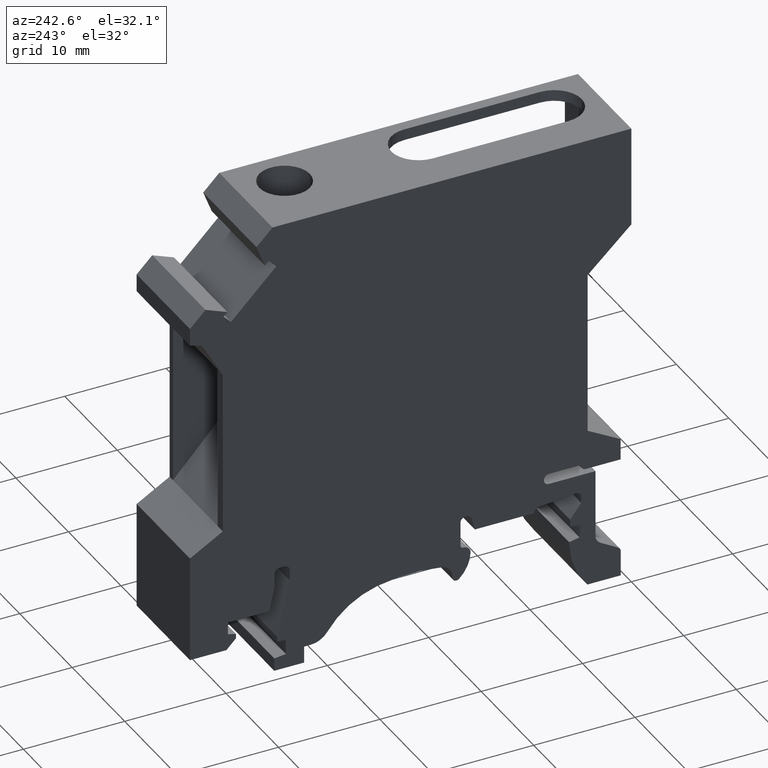
[diagram: clean part render]
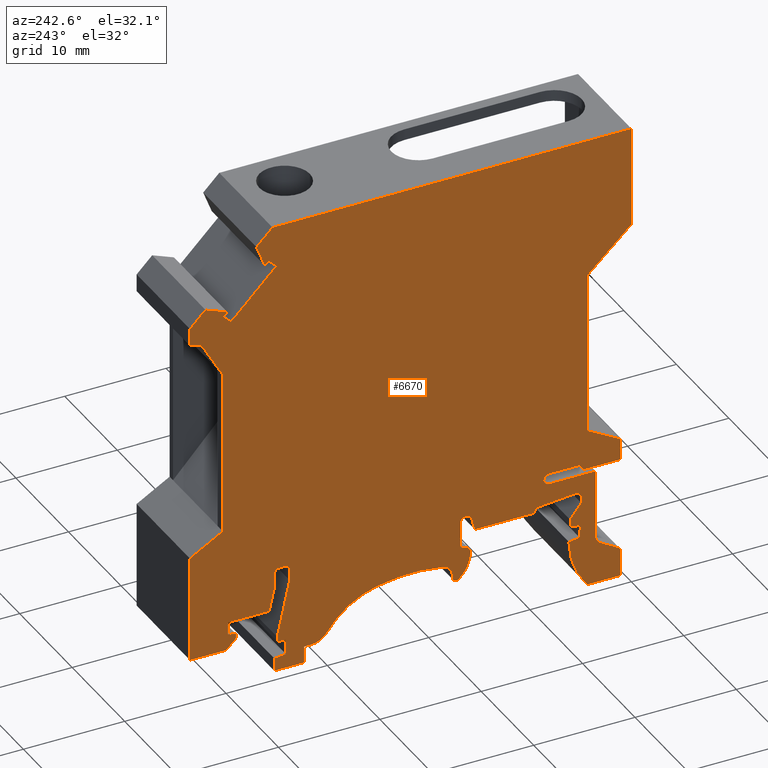
[diagram: same view with one face highlighted and labeled with its STEP entity id]
A machine part, auxiliary view. The second image highlights one B-rep face of the part: STEP entity #6670.
In plain terms, the highlighted planar face has unit normal (1, 0, 0).
Its self-contained STEP definition (entity closure, byte-faithful):
#10=CARTESIAN_POINT('',(0.,0.,0.));
#20=DIRECTION('',(0.,0.,1.));
#30=DIRECTION('',(1.,0.,0.));
#40=AXIS2_PLACEMENT_3D('',#10,#20,#30);
#50=PLANE('',#40);
#60=CARTESIAN_POINT('',(555.829199732728,-477.818261370942,
-1.77635683940025E-15));
#70=DIRECTION('',(0.707106781186654,-0.707106781186441,0.));
#80=VECTOR('',#70,1.);
#90=LINE('',#60,#80);
#100=CARTESIAN_POINT('',(49.4036845679783,28.6072537936553,0.));
#110=VERTEX_POINT('',#100);
#120=CARTESIAN_POINT('',(49.7769651538328,28.2339732078008,0.));
#130=VERTEX_POINT('',#120);
#140=EDGE_CURVE('',#110,#130,#90,.T.);
#150=ORIENTED_EDGE('',*,*,#140,.F.);
#160=CARTESIAN_POINT('',(555.829199732728,534.286207786593,0.));
#170=DIRECTION('',(-0.70710678118662,-0.707106781186476,0.));
#180=VECTOR('',#170,1.);
#190=LINE('',#160,#180);
#200=CARTESIAN_POINT('',(49.0203608979632,27.4773689519313,0.));
#210=VERTEX_POINT('',#200);
#220=EDGE_CURVE('',#130,#210,#190,.T.);
#230=ORIENTED_EDGE('',*,*,#220,.F.);
#240=CARTESIAN_POINT('',(315.963384986394,-239.465655136521,0.));
#250=DIRECTION('',(0.707106781186519,-0.707106781186576,0.));
#260=VECTOR('',#250,1.);
#270=LINE('',#240,#260);
#280=CARTESIAN_POINT('',(44.5479105069585,31.9498193429363,0.));
#290=VERTEX_POINT('',#280);
#300=EDGE_CURVE('',#290,#210,#270,.T.);
#310=ORIENTED_EDGE('',*,*,#300,.T.);
#320=CARTESIAN_POINT('',(-226.867563972499,-239.465655136521,0.));
#330=DIRECTION('',(0.707106781186548,0.707106781186548,0.));
#340=VECTOR('',#330,1.);
#350=LINE('',#320,#340);
#360=CARTESIAN_POINT('',(45.304514762828,32.7064235988058,0.));
#370=VERTEX_POINT('',#360);
#380=EDGE_CURVE('',#290,#370,#350,.T.);
#390=ORIENTED_EDGE('',*,*,#380,.F.);
#400=CARTESIAN_POINT('',(317.476593498073,-239.465655136521,
-1.77635683940025E-15));
#410=DIRECTION('',(0.707106781186441,-0.707106781186654,0.));
#420=VECTOR('',#410,1.);
#430=LINE('',#400,#420);
#440=CARTESIAN_POINT('',(45.6777953486824,32.3331430129512,0.));
#450=VERTEX_POINT('',#440);
#460=EDGE_CURVE('',#370,#450,#430,.T.);
#470=ORIENTED_EDGE('',*,*,#460,.F.);
#480=CARTESIAN_POINT('',(-60.1646556328538,-239.465655136521,0.));
#490=DIRECTION('',(0.362871839026601,0.931839057156037,0.));
#500=VECTOR('',#490,1.);
#510=LINE('',#480,#500);
#520=CARTESIAN_POINT('',(46.5121439855021,34.4757139249269,0.));
#530=VERTEX_POINT('',#520);
#540=EDGE_CURVE('',#450,#530,#510,.T.);
#550=ORIENTED_EDGE('',*,*,#540,.F.);
#560=CARTESIAN_POINT('',(320.45351304695,-239.465655136521,0.));
#570=DIRECTION('',(-0.707106781186548,0.707106781186548,0.));
#580=VECTOR('',#570,1.);
#590=LINE('',#560,#580);
#600=CARTESIAN_POINT('',(44.9291997327281,36.058658177701,0.));
#610=VERTEX_POINT('',#600);
#620=EDGE_CURVE('',#530,#610,#590,.T.);
#630=ORIENTED_EDGE('',*,*,#620,.F.);
#640=CARTESIAN_POINT('',(-375.562272307509,36.058658177701,0.));
#650=DIRECTION('',(1.,0.,0.));
#660=VECTOR('',#650,1.);
#670=LINE('',#640,#660);
#680=CARTESIAN_POINT('',(9.51919973272817,36.058658177701,0.));
#690=VERTEX_POINT('',#680);
#700=EDGE_CURVE('',#690,#610,#670,.T.);
#710=ORIENTED_EDGE('',*,*,#700,.T.);
#720=CARTESIAN_POINT('',(9.51919973272817,-305.746632837346,0.));
#730=DIRECTION('',(0.,-1.,0.));
#740=VECTOR('',#730,1.);
#750=LINE('',#720,#740);
#760=CARTESIAN_POINT('',(9.51919973272817,26.1586581777011,0.));
#770=VERTEX_POINT('',#760);
#780=EDGE_CURVE('',#690,#770,#750,.T.);
#790=ORIENTED_EDGE('',*,*,#780,.F.);
#800=CARTESIAN_POINT('',(9.51919973272817,26.1586581777011,0.));
#810=DIRECTION('',(0.732975177552117,-0.680255385199149,0.));
#820=VECTOR('',#810,1.);
#830=LINE('',#800,#820);
#840=CARTESIAN_POINT('',(13.8291997327281,22.1586581777013,0.));
#850=VERTEX_POINT('',#840);
#860=EDGE_CURVE('',#770,#850,#830,.T.);
#870=ORIENTED_EDGE('',*,*,#860,.F.);
#880=CARTESIAN_POINT('',(13.8291997327281,-305.746632837346,0.));
#890=DIRECTION('',(0.,-1.,0.));
#900=VECTOR('',#890,1.);
#910=LINE('',#880,#900);
#920=CARTESIAN_POINT('',(13.8291997327281,6.04912815159126,0.));
#930=VERTEX_POINT('',#920);
#940=EDGE_CURVE('',#850,#930,#910,.T.);
#950=ORIENTED_EDGE('',*,*,#940,.F.);
#960=CARTESIAN_POINT('',(555.829199732728,304.644428412688,0.));
#970=DIRECTION('',(-0.875877707971958,-0.482533149822672,0.));
#980=VECTOR('',#970,1.);
#990=LINE('',#960,#980);
#1000=CARTESIAN_POINT('',(10.5791997327281,4.25865817770092,0.));
#1010=VERTEX_POINT('',#1000);
#1020=EDGE_CURVE('',#930,#1010,#990,.T.);
#1030=ORIENTED_EDGE('',*,*,#1020,.F.);
#1040=CARTESIAN_POINT('',(10.5791997327281,-239.465655136521,0.));
#1050=DIRECTION('',(0.,-1.,0.));
#1060=VECTOR('',#1050,1.);
#1070=LINE('',#1040,#1060);
#1080=CARTESIAN_POINT('',(10.5791997327281,2.15865817770094,0.));
#1090=VERTEX_POINT('',#1080);
#1100=EDGE_CURVE('',#1010,#1090,#1070,.T.);
#1110=ORIENTED_EDGE('',*,*,#1100,.F.);
#1120=CARTESIAN_POINT('',(555.829199732728,2.15865817770094,0.));
#1130=DIRECTION('',(-1.,0.,0.));
#1140=VECTOR('',#1130,1.);
#1150=LINE('',#1120,#1140);
#1160=CARTESIAN_POINT('',(14.0113065139147,2.15865817770094,0.));
#1170=VERTEX_POINT('',#1160);
#1180=EDGE_CURVE('',#1170,#1090,#1150,.T.);
#1190=ORIENTED_EDGE('',*,*,#1180,.T.);
#1200=CARTESIAN_POINT('',(14.0113065139147,2.65865817770094,0.));
#1210=DIRECTION('',(0.,0.,1.));
#1220=DIRECTION('',(1.,0.,0.));
#1230=AXIS2_PLACEMENT_3D('',#1200,#1210,#1220);
#1240=CIRCLE('',#1230,0.5);
#1250=CARTESIAN_POINT('',(14.5113065139147,2.65865817770094,0.));
#1260=VERTEX_POINT('',#1250);
#1270=EDGE_CURVE('',#1170,#1260,#1240,.T.);
#1280=ORIENTED_EDGE('',*,*,#1270,.F.);
#1290=CARTESIAN_POINT('',(14.5113065139147,-239.465655136521,0.));
#1300=DIRECTION('',(0.,-1.,0.));
#1310=VECTOR('',#1300,1.);
#1320=LINE('',#1290,#1310);
#1330=CARTESIAN_POINT('',(14.5113065139147,2.70865817770095,0.));
#1340=VERTEX_POINT('',#1330);
#1350=EDGE_CURVE('',#1340,#1260,#1320,.T.);
#1360=ORIENTED_EDGE('',*,*,#1350,.T.);
#1370=CARTESIAN_POINT('',(555.829199732728,2.70865817770095,0.));
#1380=DIRECTION('',(-1.,0.,0.));
#1390=VECTOR('',#1380,1.);
#1400=LINE('',#1370,#1390);
#1410=CARTESIAN_POINT('',(17.6291997327282,2.70865817770095,0.));
#1420=VERTEX_POINT('',#1410);
#1430=EDGE_CURVE('',#1420,#1340,#1400,.T.);
#1440=ORIENTED_EDGE('',*,*,#1430,.T.);
#1450=CARTESIAN_POINT('',(17.6291997327282,2.18365817770098,0.));
#1460=DIRECTION('',(0.,0.,1.));
#1470=DIRECTION('',(1.,0.,0.));
#1480=AXIS2_PLACEMENT_3D('',#1450,#1460,#1470);
#1490=CIRCLE('',#1480,0.52500000000003);
#1500=CARTESIAN_POINT('',(18.1536041568128,2.15865817769072,0.));
#1510=VERTEX_POINT('',#1500);
#1520=EDGE_CURVE('',#1510,#1420,#1490,.T.);
#1530=ORIENTED_EDGE('',*,*,#1520,.T.);
#1540=CARTESIAN_POINT('',(17.6316997327281,2.18103615558056,0.));
#1550=DIRECTION('',(0.,0.,1.));
#1560=DIRECTION('',(1.,0.,0.));
#1570=AXIS2_PLACEMENT_3D('',#1540,#1550,#1560);
#1580=CIRCLE('',#1570,0.522383960103672);
#1590=CARTESIAN_POINT('',(17.6341997327282,1.65865817770094,0.));
#1600=VERTEX_POINT('',#1590);
#1610=EDGE_CURVE('',#1600,#1510,#1580,.T.);
#1620=ORIENTED_EDGE('',*,*,#1610,.T.);
#1630=CARTESIAN_POINT('',(555.829199732728,1.65865817770094,0.));
#1640=DIRECTION('',(1.,0.,0.));
#1650=VECTOR('',#1640,1.);
#1660=LINE('',#1630,#1650);
#1670=CARTESIAN_POINT('',(13.0591997327281,1.65865817770094,0.));
#1680=VERTEX_POINT('',#1670);
#1690=EDGE_CURVE('',#1680,#1600,#1660,.T.);
#1700=ORIENTED_EDGE('',*,*,#1690,.T.);
#1710=CARTESIAN_POINT('',(13.0591997327281,-5.03194074554045,0.));
#1720=DIRECTION('',(0.,1.,0.));
#1730=VECTOR('',#1720,1.);
#1740=LINE('',#1710,#1730);
#1750=CARTESIAN_POINT('',(13.0591997327281,-5.03194074554045,0.));
#1760=VERTEX_POINT('',#1750);
#1770=EDGE_CURVE('',#1760,#1680,#1740,.T.);
#1780=ORIENTED_EDGE('',*,*,#1770,.T.);
#1790=CARTESIAN_POINT('',(12.0591997327281,-5.03194074554045,0.));
#1800=DIRECTION('',(0.,0.,1.));
#1810=DIRECTION('',(1.,0.,0.));
#1820=AXIS2_PLACEMENT_3D('',#1790,#1800,#1810);
#1830=CIRCLE('',#1820,1.00000000000006);
#1840=CARTESIAN_POINT('',(12.5591997327282,-5.89796614932493,0.));
#1850=VERTEX_POINT('',#1840);
#1860=EDGE_CURVE('',#1850,#1760,#1830,.T.);
#1870=ORIENTED_EDGE('',*,*,#1860,.T.);
#1880=CARTESIAN_POINT('',(10.8091997327281,-6.90832912040673,0.));
#1890=DIRECTION('',(0.866025403784447,0.499999999999985,0.));
#1900=VECTOR('',#1890,1.);
#1910=LINE('',#1880,#1900);
#1920=CARTESIAN_POINT('',(10.8091997327281,-6.90832912040673,0.));
#1930=VERTEX_POINT('',#1920);
#1940=EDGE_CURVE('',#1930,#1850,#1910,.T.);
#1950=ORIENTED_EDGE('',*,*,#1940,.T.);
#1960=CARTESIAN_POINT('',(11.0591997327281,-7.34134182229906,0.));
#1970=DIRECTION('',(0.,0.,1.));
#1980=DIRECTION('',(1.,0.,0.));
#1990=AXIS2_PLACEMENT_3D('',#1960,#1970,#1980);
#2000=CIRCLE('',#1990,0.5);
#2010=CARTESIAN_POINT('',(10.5591997327281,-7.34134182229906,0.));
#2020=VERTEX_POINT('',#2010);
#2030=EDGE_CURVE('',#1930,#2020,#2000,.T.);
#2040=ORIENTED_EDGE('',*,*,#2030,.F.);
#2050=CARTESIAN_POINT('',(10.5591997327281,-239.465655136521,0.));
#2060=DIRECTION('',(0.,1.,0.));
#2070=VECTOR('',#2060,1.);
#2080=LINE('',#2050,#2070);
#2090=CARTESIAN_POINT('',(10.5591997327281,-9.84134182229906,0.));
#2100=VERTEX_POINT('',#2090);
#2110=EDGE_CURVE('',#2100,#2020,#2080,.T.);
#2120=ORIENTED_EDGE('',*,*,#2110,.T.);
#2130=CARTESIAN_POINT('',(555.829199732728,-9.84134182229906,0.));
#2140=DIRECTION('',(-1.,0.,0.));
#2150=VECTOR('',#2140,1.);
#2160=LINE('',#2130,#2150);
#2170=CARTESIAN_POINT('',(13.8646161327159,-9.84134182229906,0.));
#2180=VERTEX_POINT('',#2170);
#2190=EDGE_CURVE('',#2180,#2100,#2160,.T.);
#2200=ORIENTED_EDGE('',*,*,#2190,.T.);
#2210=CARTESIAN_POINT('',(8.19481872812804,-4.98385446349437,0.));
#2220=DIRECTION('',(0.,0.,1.));
#2230=DIRECTION('',(1.,0.,0.));
#2240=AXIS2_PLACEMENT_3D('',#2210,#2220,#2230);
#2250=CIRCLE('',#2240,7.46604219449759);
#2260=CARTESIAN_POINT('',(15.6591997327282,-5.14134182229934,0.));
#2270=VERTEX_POINT('',#2260);
#2280=EDGE_CURVE('',#2180,#2270,#2250,.T.);
#2290=ORIENTED_EDGE('',*,*,#2280,.F.);
#2300=CARTESIAN_POINT('',(15.6591997327282,-4.94134182229914,0.));
#2310=DIRECTION('',(0.,-1.,0.));
#2320=VECTOR('',#2310,1.);
#2330=LINE('',#2300,#2320);
#2340=CARTESIAN_POINT('',(15.6591997327282,-4.94134182229914,0.));
#2350=VERTEX_POINT('',#2340);
#2360=EDGE_CURVE('',#2350,#2270,#2330,.T.);
#2370=ORIENTED_EDGE('',*,*,#2360,.T.);
#2380=CARTESIAN_POINT('',(14.6341997327282,-4.74134182229915,0.));
#2390=DIRECTION('',(0.9814905920257,-0.191510359419642,0.));
#2400=VECTOR('',#2390,1.);
#2410=LINE('',#2380,#2400);
#2420=CARTESIAN_POINT('',(14.6341997327282,-4.74134182229915,0.));
#2430=VERTEX_POINT('',#2420);
#2440=EDGE_CURVE('',#2430,#2350,#2410,.T.);
#2450=ORIENTED_EDGE('',*,*,#2440,.T.);
#2460=CARTESIAN_POINT('',(14.5341997327282,-3.54134182229916,0.));
#2470=DIRECTION('',(0.0830454798537595,-0.996545758244878,0.));
#2480=VECTOR('',#2470,1.);
#2490=LINE('',#2460,#2480);
#2500=CARTESIAN_POINT('',(14.5341997327282,-3.54134182229916,0.));
#2510=VERTEX_POINT('',#2500);
#2520=EDGE_CURVE('',#2510,#2430,#2490,.T.);
#2530=ORIENTED_EDGE('',*,*,#2520,.T.);
#2540=CARTESIAN_POINT('',(15.5591997327281,-3.34092992019282,0.));
#2550=DIRECTION('',(-0.981416387151379,-0.191890268202259,0.));
#2560=VECTOR('',#2550,1.);
#2570=LINE('',#2540,#2560);
#2580=CARTESIAN_POINT('',(15.5591997327281,-3.34092992019285,0.));
#2590=VERTEX_POINT('',#2580);
#2600=EDGE_CURVE('',#2590,#2510,#2570,.T.);
#2610=ORIENTED_EDGE('',*,*,#2600,.T.);
#2620=CARTESIAN_POINT('',(15.5591997327281,-2.64134182229907,0.));
#2630=DIRECTION('',(0.,-1.,0.));
#2640=VECTOR('',#2630,1.);
#2650=LINE('',#2620,#2640);
#2660=CARTESIAN_POINT('',(15.5591997327281,-2.64134182229907,0.));
#2670=VERTEX_POINT('',#2660);
#2680=EDGE_CURVE('',#2670,#2590,#2650,.T.);
#2690=ORIENTED_EDGE('',*,*,#2680,.T.);
#2700=CARTESIAN_POINT('',(14.4591997327282,-1.23340602688677,0.));
#2710=DIRECTION('',(0.61566147532565,-0.788010753606728,0.));
#2720=VECTOR('',#2710,1.);
#2730=LINE('',#2700,#2720);
#2740=CARTESIAN_POINT('',(14.4591997327282,-1.23340602688677,0.));
#2750=VERTEX_POINT('',#2740);
#2760=EDGE_CURVE('',#2750,#2670,#2730,.T.);
#2770=ORIENTED_EDGE('',*,*,#2760,.T.);
#2780=CARTESIAN_POINT('',(14.4591997327282,-1.23340602688677,0.));
#2790=DIRECTION('',(0.,1.,0.));
#2800=VECTOR('',#2790,1.);
#2810=LINE('',#2780,#2800);
#2820=CARTESIAN_POINT('',(14.4591997327282,-0.591086257533789,0.));
#2830=VERTEX_POINT('',#2820);
#2840=EDGE_CURVE('',#2750,#2830,#2810,.T.);
#2850=ORIENTED_EDGE('',*,*,#2840,.F.);
#2860=CARTESIAN_POINT('',(14.959199732728,-0.591086257533675,0.));
#2870=DIRECTION('',(0.,0.,1.));
#2880=DIRECTION('',(1.,0.,0.));
#2890=AXIS2_PLACEMENT_3D('',#2860,#2870,#2880);
#2900=CIRCLE('',#2890,0.499999999999955);
#2910=CARTESIAN_POINT('',(14.9987460769518,-0.0926526243802841,0.));
#2920=VERTEX_POINT('',#2910);
#2930=EDGE_CURVE('',#2920,#2830,#2900,.T.);
#2940=ORIENTED_EDGE('',*,*,#2930,.T.);
#2950=CARTESIAN_POINT('',(14.9987460769505,-0.0926526243801504,0.));
#2960=DIRECTION('',(0.995969175038445,-0.0896961669930173,0.));
#2970=VECTOR('',#2960,1.);
#2980=LINE('',#2950,#2970);
#2990=CARTESIAN_POINT('',(18.8705245981333,-0.441341822298939,0.));
#3000=VERTEX_POINT('',#2990);
#3010=EDGE_CURVE('',#2920,#3000,#2980,.T.);
#3020=ORIENTED_EDGE('',*,*,#3010,.F.);
#3030=CARTESIAN_POINT('',(19.1591997327283,-0.941341822299137,0.));
#3040=DIRECTION('',(-0.500000000000089,0.866025403784387,0.));
#3050=VECTOR('',#3040,1.);
#3060=LINE('',#3030,#3050);
#3070=CARTESIAN_POINT('',(19.1591997327283,-0.941341822299137,0.));
#3080=VERTEX_POINT('',#3070);
#3090=EDGE_CURVE('',#3080,#3000,#3060,.T.);
#3100=ORIENTED_EDGE('',*,*,#3090,.T.);
#3110=CARTESIAN_POINT('',(19.1591997327283,-0.941341822299137,0.));
#3120=DIRECTION('',(1.,0.,0.));
#3130=VECTOR('',#3120,1.);
#3140=LINE('',#3110,#3130);
#3150=CARTESIAN_POINT('',(24.9591997327282,-0.941341822299137,0.));
#3160=VERTEX_POINT('',#3150);
#3170=EDGE_CURVE('',#3080,#3160,#3140,.T.);
#3180=ORIENTED_EDGE('',*,*,#3170,.F.);
#3190=CARTESIAN_POINT('',(24.9591997327282,-0.941341822299137,0.));
#3200=DIRECTION('',(0.258819045102482,0.965925826289079,0.));
#3210=VECTOR('',#3200,1.);
#3220=LINE('',#3190,#3210);
#3230=CARTESIAN_POINT('',(25.2886190214629,0.288067700252157,0.));
#3240=VERTEX_POINT('',#3230);
#3250=EDGE_CURVE('',#3160,#3240,#3220,.T.);
#3260=ORIENTED_EDGE('',*,*,#3250,.F.);
#3270=CARTESIAN_POINT('',(25.7715819346075,0.158658177700943,0.));
#3280=DIRECTION('',(0.,0.,1.));
#3290=DIRECTION('',(1.,0.,0.));
#3300=AXIS2_PLACEMENT_3D('',#3270,#3280,#3290);
#3310=CIRCLE('',#3300,0.499999999999915);
#3320=CARTESIAN_POINT('',(25.7715819346075,0.658658177700886,0.));
#3330=VERTEX_POINT('',#3320);
#3340=EDGE_CURVE('',#3330,#3240,#3310,.T.);
#3350=ORIENTED_EDGE('',*,*,#3340,.T.);
#3360=CARTESIAN_POINT('',(25.7715819346075,0.658658177700886,0.));
#3370=DIRECTION('',(1.,0.,0.));
#3380=VECTOR('',#3370,1.);
#3390=LINE('',#3360,#3380);
#3400=CARTESIAN_POINT('',(25.8841997327282,0.658658177700886,0.));
#3410=VERTEX_POINT('',#3400);
#3420=EDGE_CURVE('',#3330,#3410,#3390,.T.);
#3430=ORIENTED_EDGE('',*,*,#3420,.F.);
#3440=CARTESIAN_POINT('',(25.8841997327282,0.158658177700943,0.));
#3450=DIRECTION('',(0.,0.,1.));
#3460=DIRECTION('',(1.,0.,0.));
#3470=AXIS2_PLACEMENT_3D('',#3440,#3450,#3460);
#3480=CIRCLE('',#3470,0.5);
#3490=CARTESIAN_POINT('',(26.3841997327282,0.158658177700943,0.));
#3500=VERTEX_POINT('',#3490);
#3510=EDGE_CURVE('',#3500,#3410,#3480,.T.);
#3520=ORIENTED_EDGE('',*,*,#3510,.T.);
#3530=CARTESIAN_POINT('',(26.3841997327282,0.158658177700943,0.));
#3540=DIRECTION('',(0.,-1.,0.));
#3550=VECTOR('',#3540,1.);
#3560=LINE('',#3530,#3550);
#3570=CARTESIAN_POINT('',(26.3841997327282,-2.19134182229914,0.));
#3580=VERTEX_POINT('',#3570);
#3590=EDGE_CURVE('',#3500,#3580,#3560,.T.);
#3600=ORIENTED_EDGE('',*,*,#3590,.F.);
#3610=CARTESIAN_POINT('',(26.0841997327282,-2.19134182229914,0.));
#3620=DIRECTION('',(0.,0.,1.));
#3630=DIRECTION('',(1.,0.,0.));
#3640=AXIS2_PLACEMENT_3D('',#3610,#3620,#3630);
#3650=CIRCLE('',#3640,0.300000000000011);
#3660=CARTESIAN_POINT('',(26.0841997327282,-2.49134182229915,0.));
#3670=VERTEX_POINT('',#3660);
#3680=EDGE_CURVE('',#3670,#3580,#3650,.T.);
#3690=ORIENTED_EDGE('',*,*,#3680,.T.);
#3700=CARTESIAN_POINT('',(26.0841997327282,-3.19134182229914,0.));
#3710=DIRECTION('',(0.,0.,1.));
#3720=DIRECTION('',(1.,0.,0.));
#3730=AXIS2_PLACEMENT_3D('',#3700,#3710,#3720);
#3740=CIRCLE('',#3730,0.699999999999989);
#3750=CARTESIAN_POINT('',(25.3848214714355,-3.22083839212087,0.));
#3760=VERTEX_POINT('',#3750);
#3770=EDGE_CURVE('',#3670,#3760,#3740,.T.);
#3780=ORIENTED_EDGE('',*,*,#3770,.F.);
#3790=CARTESIAN_POINT('',(28.7318460076218,-3.07967623654554,0.));
#3800=DIRECTION('',(0.,0.,1.));
#3810=DIRECTION('',(1.,0.,0.));
#3820=AXIS2_PLACEMENT_3D('',#3790,#3800,#3810);
#3830=CIRCLE('',#3820,3.34999999999994);
#3840=CARTESIAN_POINT('',(26.5201121022341,-5.59577105426564,0.));
#3850=VERTEX_POINT('',#3840);
#3860=EDGE_CURVE('',#3760,#3850,#3830,.T.);
#3870=ORIENTED_EDGE('',*,*,#3860,.F.);
#3880=CARTESIAN_POINT('',(26.7841997327282,-5.29534182229906,0.));
#3890=DIRECTION('',(0.,0.,1.));
#3900=DIRECTION('',(1.,0.,0.));
#3910=AXIS2_PLACEMENT_3D('',#3880,#3890,#3900);
#3920=CIRCLE('',#3910,0.399999999999995);
#3930=CARTESIAN_POINT('',(27.1812827404797,-5.24712268756014,0.));
#3940=VERTEX_POINT('',#3930);
#3950=EDGE_CURVE('',#3850,#3940,#3920,.T.);
#3960=ORIENTED_EDGE('',*,*,#3950,.F.);
#3970=CARTESIAN_POINT('',(28.3725317637343,-5.10246528334324,0.));
#3980=DIRECTION('',(0.,0.,1.));
#3990=DIRECTION('',(1.,0.,0.));
#4000=AXIS2_PLACEMENT_3D('',#3970,#3980,#3990);
#4010=CIRCLE('',#4000,1.20000000000004);
#4020=CARTESIAN_POINT('',(28.1495983262149,-3.92335516022672,0.));
#4030=VERTEX_POINT('',#4020);
#4040=EDGE_CURVE('',#4030,#3940,#4010,.T.);
#4050=ORIENTED_EDGE('',*,*,#4040,.T.);
#4060=CARTESIAN_POINT('',(31.1591997327283,-19.8413418222991,0.));
#4070=DIRECTION('',(0.,0.,1.));
#4080=DIRECTION('',(1.,0.,0.));
#4090=AXIS2_PLACEMENT_3D('',#4060,#4070,#4080);
#4100=CIRCLE('',#4090,16.2000000000001);
#4110=CARTESIAN_POINT('',(34.620024337029,-4.01532864594071,0.));
#4120=VERTEX_POINT('',#4110);
#4130=EDGE_CURVE('',#4120,#4030,#4100,.T.);
#4140=ORIENTED_EDGE('',*,*,#4130,.T.);
#4150=CARTESIAN_POINT('',(32.9109751497199,-11.8306437947597,0.));
#4160=DIRECTION('',(0.,0.,1.));
#4170=DIRECTION('',(1.,0.,0.));
#4180=AXIS2_PLACEMENT_3D('',#4150,#4160,#4170);
#4190=CIRCLE('',#4180,7.99999999999997);
#4200=CARTESIAN_POINT('',(39.5175548161265,-7.31920221679127,0.));
#4210=VERTEX_POINT('',#4200);
#4220=EDGE_CURVE('',#4210,#4120,#4190,.T.);
#4230=ORIENTED_EDGE('',*,*,#4220,.T.);
#4240=CARTESIAN_POINT('',(41.1691997327281,-6.19134182229914,0.));
#4250=DIRECTION('',(0.,0.,1.));
#4260=DIRECTION('',(1.,0.,0.));
#4270=AXIS2_PLACEMENT_3D('',#4240,#4250,#4260);
#4280=CIRCLE('',#4270,1.99999999999998);
#4290=CARTESIAN_POINT('',(41.1691997327281,-8.19134182229914,0.));
#4300=VERTEX_POINT('',#4290);
#4310=EDGE_CURVE('',#4210,#4300,#4280,.T.);
#4320=ORIENTED_EDGE('',*,*,#4310,.F.);
#4330=CARTESIAN_POINT('',(555.829199732728,-8.19134182229914,0.));
#4340=DIRECTION('',(1.,0.,0.));
#4350=VECTOR('',#4340,1.);
#4360=LINE('',#4330,#4350);
#4370=CARTESIAN_POINT('',(41.8091997327281,-8.19134182229914,0.));
#4380=VERTEX_POINT('',#4370);
#4390=EDGE_CURVE('',#4300,#4380,#4360,.T.);
#4400=ORIENTED_EDGE('',*,*,#4390,.F.);
#4410=CARTESIAN_POINT('',(41.8091997327281,-239.465655136521,0.));
#4420=DIRECTION('',(0.,1.,0.));
#4430=VECTOR('',#4420,1.);
#4440=LINE('',#4410,#4430);
#4450=CARTESIAN_POINT('',(41.8091997327281,-9.84134182229906,0.));
#4460=VERTEX_POINT('',#4450);
#4470=EDGE_CURVE('',#4460,#4380,#4440,.T.);
#4480=ORIENTED_EDGE('',*,*,#4470,.T.);
#4490=CARTESIAN_POINT('',(555.829199732728,-9.84134182229906,0.));
#4500=DIRECTION('',(-1.,0.,0.));
#4510=VECTOR('',#4500,1.);
#4520=LINE('',#4490,#4510);
#4530=CARTESIAN_POINT('',(44.7591997327282,-9.84134182229906,0.));
#4540=VERTEX_POINT('',#4530);
#4550=EDGE_CURVE('',#4540,#4460,#4520,.T.);
#4560=ORIENTED_EDGE('',*,*,#4550,.T.);
#4570=CARTESIAN_POINT('',(44.7591997327282,-239.465655136521,0.));
#4580=DIRECTION('',(0.,-1.,0.));
#4590=VECTOR('',#4580,1.);
#4600=LINE('',#4570,#4590);
#4610=CARTESIAN_POINT('',(44.7591997327282,-8.56634182229914,0.));
#4620=VERTEX_POINT('',#4610);
#4630=EDGE_CURVE('',#4620,#4540,#4600,.T.);
#4640=ORIENTED_EDGE('',*,*,#4630,.T.);
#4650=CARTESIAN_POINT('',(555.829199732728,-64.1174287788219,0.));
#4660=DIRECTION('',(-0.994144463069456,0.108059180768421,0.));
#4670=VECTOR('',#4660,1.);
#4680=LINE('',#4650,#4670);
#4690=CARTESIAN_POINT('',(43.6091997327282,-8.44134182229914,0.));
#4700=VERTEX_POINT('',#4690);
#4710=EDGE_CURVE('',#4620,#4700,#4680,.T.);
#4720=ORIENTED_EDGE('',*,*,#4710,.F.);
#4730=CARTESIAN_POINT('',(43.6091997327282,-239.465655136521,0.));
#4740=DIRECTION('',(0.,1.,0.));
#4750=VECTOR('',#4740,1.);
#4760=LINE('',#4730,#4750);
#4770=CARTESIAN_POINT('',(43.6091997327282,-6.94134182229914,0.));
#4780=VERTEX_POINT('',#4770);
#4790=EDGE_CURVE('',#4700,#4780,#4760,.T.);
#4800=ORIENTED_EDGE('',*,*,#4790,.F.);
#4810=CARTESIAN_POINT('',(44.4591997327282,-6.94134182229914,0.));
#4820=DIRECTION('',(-1.,0.,0.));
#4830=VECTOR('',#4820,1.);
#4840=LINE('',#4810,#4830);
#4850=CARTESIAN_POINT('',(44.4591997327282,-6.94134182229914,0.));
#4860=VERTEX_POINT('',#4850);
#4870=EDGE_CURVE('',#4860,#4780,#4840,.T.);
#4880=ORIENTED_EDGE('',*,*,#4870,.T.);
#4890=CARTESIAN_POINT('',(44.4591997327282,-6.44134182229914,0.));
#4900=DIRECTION('',(0.,-1.,0.));
#4910=VECTOR('',#4900,1.);
#4920=LINE('',#4890,#4910);
#4930=CARTESIAN_POINT('',(44.4591997327282,-6.44134182229913,0.));
#4940=VERTEX_POINT('',#4930);
#4950=EDGE_CURVE('',#4940,#4860,#4920,.T.);
#4960=ORIENTED_EDGE('',*,*,#4950,.T.);
#4970=CARTESIAN_POINT('',(96.1194462605243,-239.465655136521,0.));
#4980=DIRECTION('',(0.216439613938091,-0.976296007119936,0.));
#4990=VECTOR('',#4980,1.);
#5000=LINE('',#4970,#4990);
#5010=CARTESIAN_POINT('',(43.2341997327282,-0.915723905312957,0.));
#5020=VERTEX_POINT('',#5010);
#5030=EDGE_CURVE('',#5020,#4940,#5000,.T.);
#5040=ORIENTED_EDGE('',*,*,#5030,.T.);
#5050=CARTESIAN_POINT('',(43.2341997327282,-239.465655136521,0.));
#5060=DIRECTION('',(0.,1.,0.));
#5070=VECTOR('',#5060,1.);
#5080=LINE('',#5050,#5070);
#5090=CARTESIAN_POINT('',(43.2341997327282,0.158658177700943,0.));
#5100=VERTEX_POINT('',#5090);
#5110=EDGE_CURVE('',#5020,#5100,#5080,.T.);
#5120=ORIENTED_EDGE('',*,*,#5110,.F.);
#5130=CARTESIAN_POINT('',(43.7341997327282,0.158658177700943,0.));
#5140=DIRECTION('',(0.,0.,1.));
#5150=DIRECTION('',(1.,0.,0.));
#5160=AXIS2_PLACEMENT_3D('',#5130,#5140,#5150);
#5170=CIRCLE('',#5160,0.499999999999915);
#5180=CARTESIAN_POINT('',(43.7341997327282,0.658658177700886,0.));
#5190=VERTEX_POINT('',#5180);
#5200=EDGE_CURVE('',#5190,#5100,#5170,.T.);
#5210=ORIENTED_EDGE('',*,*,#5200,.T.);
#5220=CARTESIAN_POINT('',(43.7341997327282,0.658658177700886,0.));
#5230=DIRECTION('',(1.,0.,0.));
#5240=VECTOR('',#5230,1.);
#5250=LINE('',#5220,#5240);
#5260=CARTESIAN_POINT('',(44.2341997327283,0.658658177700886,0.));
#5270=VERTEX_POINT('',#5260);
#5280=EDGE_CURVE('',#5190,#5270,#5250,.T.);
#5290=ORIENTED_EDGE('',*,*,#5280,.F.);
#5300=CARTESIAN_POINT('',(44.2341997327283,0.158658177700943,0.));
#5310=DIRECTION('',(0.,0.,1.));
#5320=DIRECTION('',(1.,0.,0.));
#5330=AXIS2_PLACEMENT_3D('',#5300,#5310,#5320);
#5340=CIRCLE('',#5330,0.5);
#5350=CARTESIAN_POINT('',(44.7341997327283,0.158658177700943,0.));
#5360=VERTEX_POINT('',#5350);
#5370=EDGE_CURVE('',#5360,#5270,#5340,.T.);
#5380=ORIENTED_EDGE('',*,*,#5370,.T.);
#5390=CARTESIAN_POINT('',(44.7341997327283,-239.465655136521,0.));
#5400=DIRECTION('',(0.,-1.,0.));
#5410=VECTOR('',#5400,1.);
#5420=LINE('',#5390,#5410);
#5430=CARTESIAN_POINT('',(44.7341997327283,-1.17321985787694,0.));
#5440=VERTEX_POINT('',#5430);
#5450=EDGE_CURVE('',#5360,#5440,#5420,.T.);
#5460=ORIENTED_EDGE('',*,*,#5450,.F.);
#5470=CARTESIAN_POINT('',(97.5623607821983,-239.465655136521,0.));
#5480=DIRECTION('',(0.216439613938128,-0.976296007119928,0.));
#5490=VECTOR('',#5480,1.);
#5500=LINE('',#5470,#5490);
#5510=CARTESIAN_POINT('',(45.2591997327283,-3.54134182229916,0.));
#5520=VERTEX_POINT('',#5510);
#5530=EDGE_CURVE('',#5440,#5520,#5500,.T.);
#5540=ORIENTED_EDGE('',*,*,#5530,.F.);
#5550=CARTESIAN_POINT('',(555.829199732728,-3.54134182229916,0.));
#5560=DIRECTION('',(-1.,0.,0.));
#5570=VECTOR('',#5560,1.);
#5580=LINE('',#5550,#5570);
#5590=CARTESIAN_POINT('',(49.3341997327282,-3.54134182229916,0.));
#5600=VERTEX_POINT('',#5590);
#5610=EDGE_CURVE('',#5600,#5520,#5580,.T.);
#5620=ORIENTED_EDGE('',*,*,#5610,.T.);
#5630=CARTESIAN_POINT('',(49.3341997327282,-4.74134182229915,0.));
#5640=DIRECTION('',(0.,1.,0.));
#5650=VECTOR('',#5640,1.);
#5660=LINE('',#5630,#5650);
#5670=CARTESIAN_POINT('',(49.3341997327282,-4.74134182229915,0.));
#5680=VERTEX_POINT('',#5670);
#5690=EDGE_CURVE('',#5680,#5600,#5660,.T.);
#5700=ORIENTED_EDGE('',*,*,#5690,.T.);
#5710=CARTESIAN_POINT('',(49.3341997327282,-4.74134182229915,0.));
#5720=DIRECTION('',(-0.970142500145332,-0.242535625036333,0.));
#5730=VECTOR('',#5720,1.);
#5740=LINE('',#5710,#5730);
#5750=CARTESIAN_POINT('',(48.5341997327282,-4.94134182229914,0.));
#5760=VERTEX_POINT('',#5750);
#5770=EDGE_CURVE('',#5680,#5760,#5740,.T.);
#5780=ORIENTED_EDGE('',*,*,#5770,.F.);
#5790=CARTESIAN_POINT('',(48.5341997327282,-4.94134182229914,0.));
#5800=DIRECTION('',(0.,-1.,0.));
#5810=VECTOR('',#5800,1.);
#5820=LINE('',#5790,#5810);
#5830=CARTESIAN_POINT('',(48.5341997327282,-5.39134182229907,0.));
#5840=VERTEX_POINT('',#5830);
#5850=EDGE_CURVE('',#5760,#5840,#5820,.T.);
#5860=ORIENTED_EDGE('',*,*,#5850,.F.);
#5870=CARTESIAN_POINT('',(282.608513046885,-239.465655136521,0.));
#5880=DIRECTION('',(-0.707106781186449,0.707106781186646,0.));
#5890=VECTOR('',#5880,1.);
#5900=LINE('',#5870,#5890);
#5910=CARTESIAN_POINT('',(49.4841997327279,-6.34134182229906,0.));
#5920=VERTEX_POINT('',#5910);
#5930=EDGE_CURVE('',#5920,#5840,#5900,.T.);
#5940=ORIENTED_EDGE('',*,*,#5930,.T.);
#5950=CARTESIAN_POINT('',(555.829199732728,-6.34134182229906,0.));
#5960=DIRECTION('',(1.,0.,0.));
#5970=VECTOR('',#5960,1.);
#5980=LINE('',#5950,#5970);
#5990=CARTESIAN_POINT('',(53.0791997327281,-6.34134182229906,0.));
#6000=VERTEX_POINT('',#5990);
#6010=EDGE_CURVE('',#5920,#6000,#5980,.T.);
#6020=ORIENTED_EDGE('',*,*,#6010,.F.);
#6030=CARTESIAN_POINT('',(53.0791997327281,-239.465655136521,0.));
#6040=DIRECTION('',(0.,1.,0.));
#6050=VECTOR('',#6040,1.);
#6060=LINE('',#6030,#6050);
#6070=CARTESIAN_POINT('',(53.0791997327281,4.16587233737272,0.));
#6080=VERTEX_POINT('',#6070);
#6090=EDGE_CURVE('',#6000,#6080,#6060,.T.);
#6100=ORIENTED_EDGE('',*,*,#6090,.F.);
#6110=CARTESIAN_POINT('',(-375.562272307509,251.642141605597,0.));
#6120=DIRECTION('',(-0.866025403784478,0.499999999999933,0.));
#6130=VECTOR('',#6120,1.);
#6140=LINE('',#6110,#6130);
#6150=CARTESIAN_POINT('',(49.8291997327281,6.04226071223866,0.));
#6160=VERTEX_POINT('',#6150);
#6170=EDGE_CURVE('',#6080,#6160,#6140,.T.);
#6180=ORIENTED_EDGE('',*,*,#6170,.F.);
#6190=CARTESIAN_POINT('',(49.8291997327281,-239.465655136521,0.));
#6200=DIRECTION('',(0.,1.,0.));
#6210=VECTOR('',#6200,1.);
#6220=LINE('',#6190,#6210);
#6230=CARTESIAN_POINT('',(49.8291997327281,22.2213514818061,0.));
#6240=VERTEX_POINT('',#6230);
#6250=EDGE_CURVE('',#6160,#6240,#6220,.T.);
#6260=ORIENTED_EDGE('',*,*,#6250,.F.);
#6270=CARTESIAN_POINT('',(-139.523204299512,-305.746632837346,0.));
#6280=DIRECTION('',(0.499999999999998,0.86602540378444,0.));
#6290=VECTOR('',#6280,1.);
#6300=LINE('',#6270,#6290);
#6310=CARTESIAN_POINT('',(51.9291997327283,25.858658177701,0.));
#6320=VERTEX_POINT('',#6310);
#6330=EDGE_CURVE('',#6240,#6320,#6300,.T.);
#6340=ORIENTED_EDGE('',*,*,#6330,.F.);
#6350=CARTESIAN_POINT('',(555.829199732728,160.878256243782,
1.77635683940025E-15));
#6360=DIRECTION('',(0.96592582628905,0.25881904510259,0.));
#6370=VECTOR('',#6360,1.);
#6380=LINE('',#6350,#6370);
#6390=CARTESIAN_POINT('',(53.0791997327281,26.1667997489968,0.));
#6400=VERTEX_POINT('',#6390);
#6410=EDGE_CURVE('',#6320,#6400,#6380,.T.);
#6420=ORIENTED_EDGE('',*,*,#6410,.F.);
#6430=CARTESIAN_POINT('',(53.0791997327281,-239.465655136521,0.));
#6440=DIRECTION('',(0.,1.,0.));
#6450=VECTOR('',#6440,1.);
#6460=LINE('',#6430,#6450);
#6470=CARTESIAN_POINT('',(53.0791997327281,27.9086581777008,0.));
#6480=VERTEX_POINT('',#6470);
#6490=EDGE_CURVE('',#6400,#6480,#6460,.T.);
#6500=ORIENTED_EDGE('',*,*,#6490,.F.);
#6510=CARTESIAN_POINT('',(320.453513046884,-239.465655136521,0.));
#6520=DIRECTION('',(-0.707106781186461,0.707106781186634,0.));
#6530=VECTOR('',#6520,1.);
#6540=LINE('',#6510,#6530);
#6550=CARTESIAN_POINT('',(51.5462554799543,29.441602430475,0.));
#6560=VERTEX_POINT('',#6550);
#6570=EDGE_CURVE('',#6480,#6560,#6540,.T.);
#6580=ORIENTED_EDGE('',*,*,#6570,.F.);
#6590=CARTESIAN_POINT('',(555.829199732728,225.81680044933,0.));
#6600=DIRECTION('',(-0.931839057156059,-0.362871839026545,0.));
#6610=VECTOR('',#6600,1.);
#6620=LINE('',#6590,#6610);
#6630=EDGE_CURVE('',#6560,#110,#6620,.T.);
#6640=ORIENTED_EDGE('',*,*,#6630,.F.);
#6650=EDGE_LOOP('',(#6640,#6580,#6500,#6420,#6340,#6260,#6180,#6100,
#6020,#5940,#5860,#5780,#5700,#5620,#5540,#5460,#5380,#5290,#5210,#5120,
#5040,#4960,#4880,#4800,#4720,#4640,#4560,#4480,#4400,#4320,#4230,#4140,
#4050,#3960,#3870,#3780,#3690,#3600,#3520,#3430,#3350,#3260,#3180,#3100,
#3020,#2940,#2850,#2770,#2690,#2610,#2530,#2450,#2370,#2290,#2200,#2120,
#2040,#1950,#1870,#1780,#1700,#1620,#1530,#1440,#1360,#1280,#1190,#1110,
#1030,#950,#870,#790,#710,#630,#550,#470,#390,#310,#230,#150));
#6660=FACE_OUTER_BOUND('',#6650,.T.);
#6670=ADVANCED_FACE('',(#6660),#50,.F.);